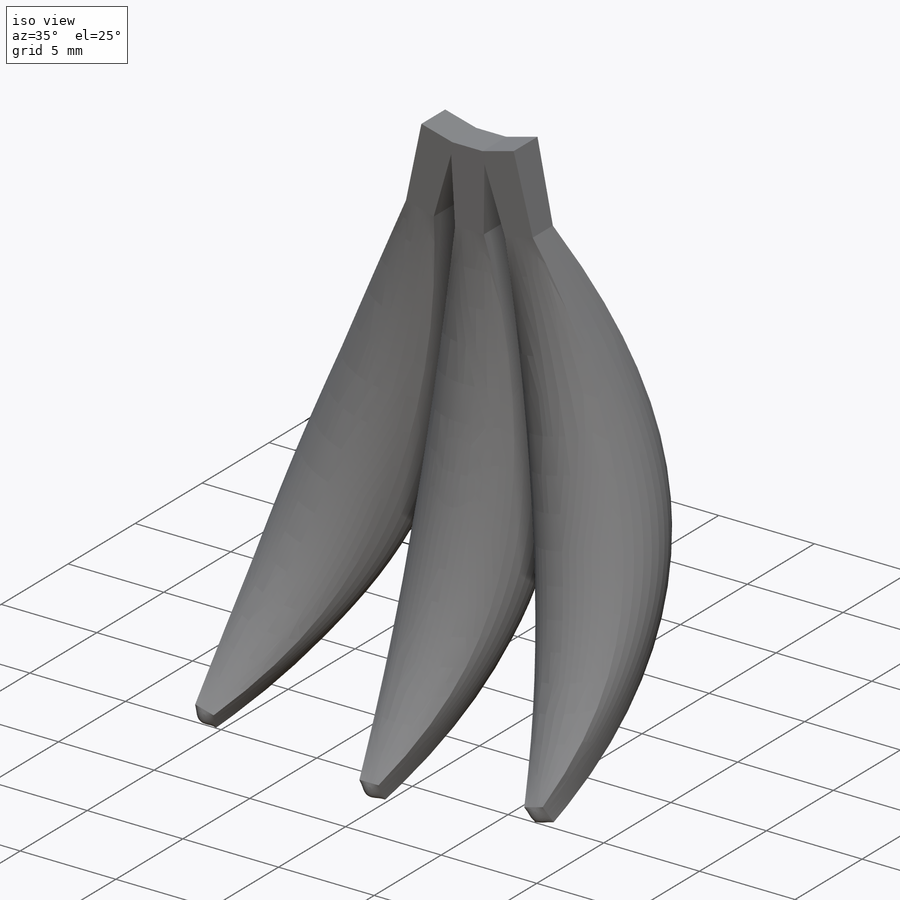
[diagram: iso view]
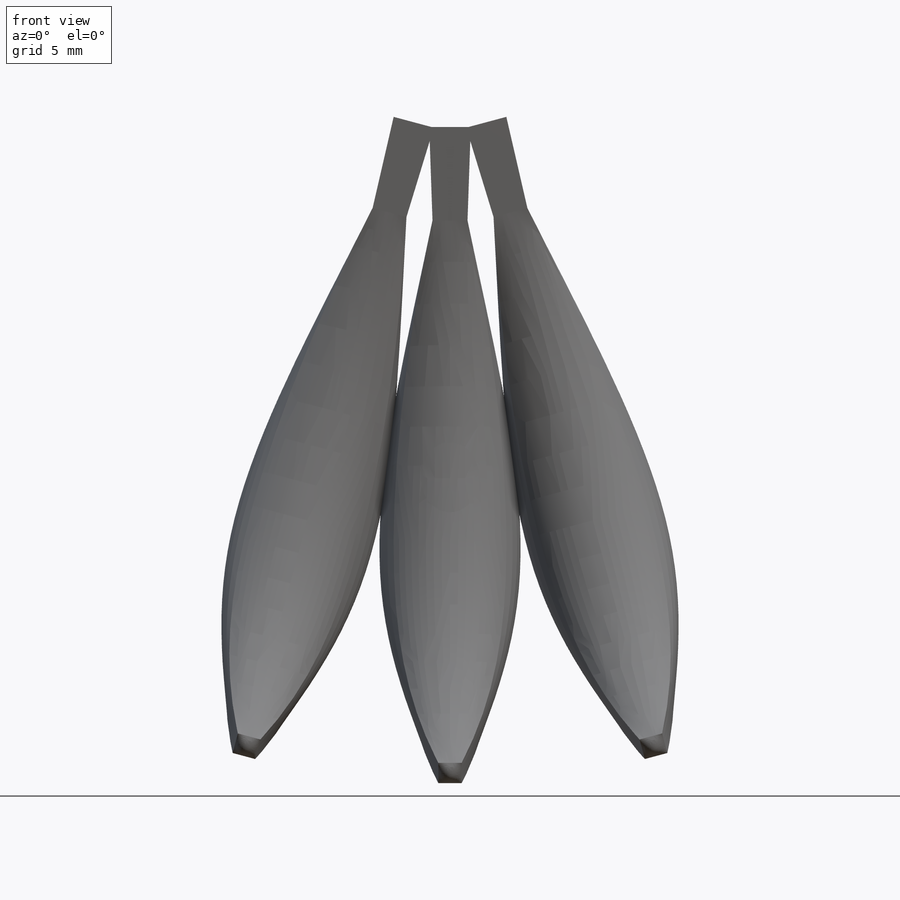
[diagram: front view]
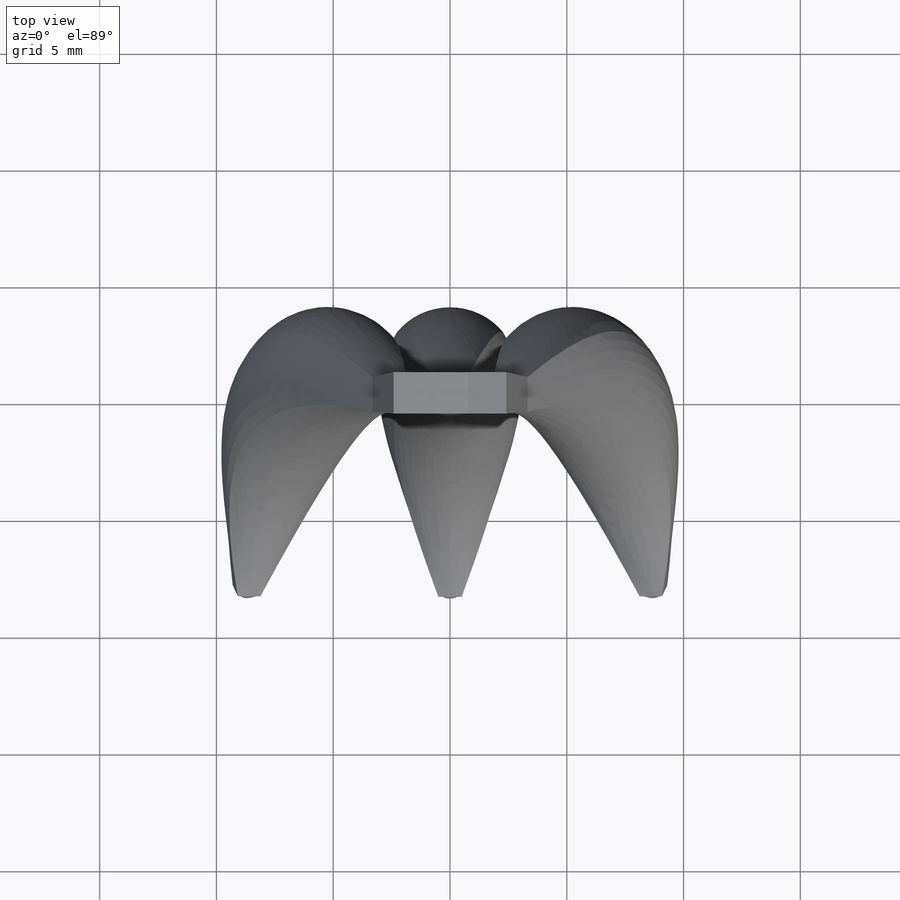
[diagram: top view]
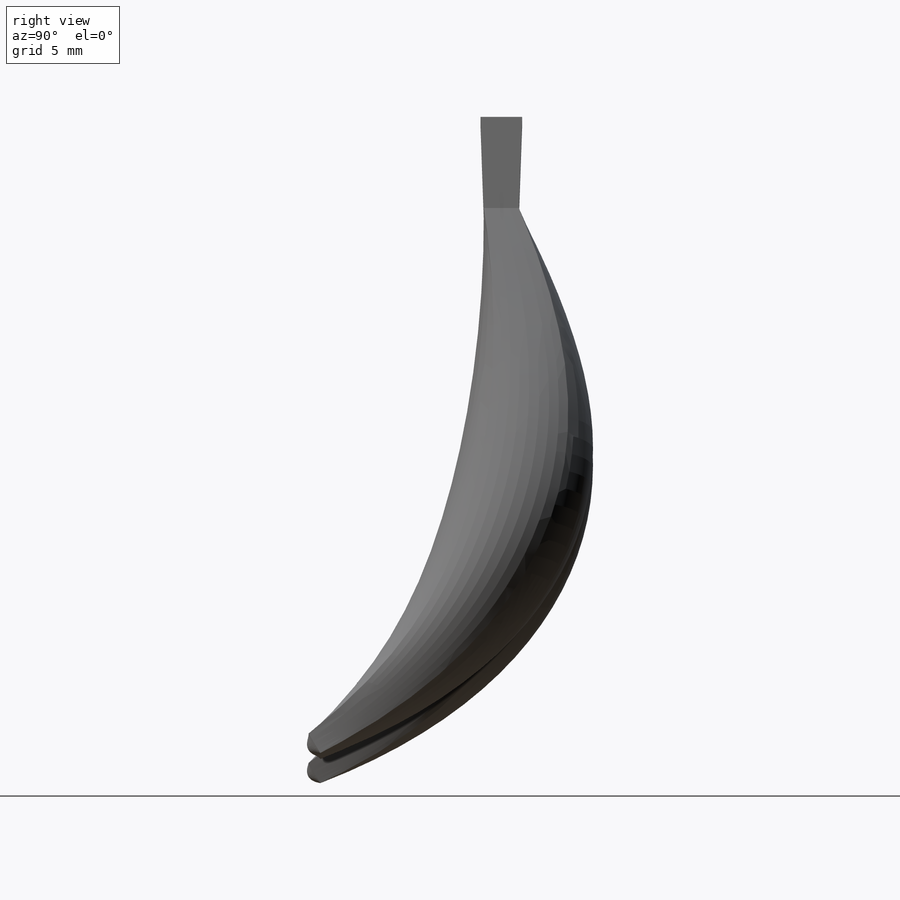
[diagram: right view]
SOLIDWORKS PART (.sldprt)
format: sldprt  version: not decoded by parser v0  size: 416,256 bytes
history: native  units: mm
features: sketch x6, plane x2, material x1, dome x1, extrude x1, pattern_circular x1 (+13 scaffold rows collapsed)
feature tree (25):
  scaffold x13  (default folders/planes/origin — collapsed)
  material  "Material <not specified>"
  sketch  "Sketch1"  dims[D1=6.0mm D2=13.0mm]
  plane  "Plane1"
  plane  "Plane2"  Offset=15mm
  sketch  "Sketch2"  dims[D1=1.5mm]
  sketch  "Sketch3"  dims[D1=1.0mm D2=10.0mm]
  dome  "Dome1"
  sketch  "Sketch4"  dims[D1=0.0mm]
  extrude  "Boss-Extrude1"  Depth=4mm
  sketch  "Sketch5"  dims[D1=3.0mm D2=2.5mm D3=4.0mm]
  sketch  "Sketch6"  dims[D1=6.0mm]
  pattern_circular  "CirPattern1"  Count=24 Angle=360deg
decode coverage: 8 of 9 modeling features carry decoded parameters
note: suppression state not decoded; provenance and decode notes live in map.json
